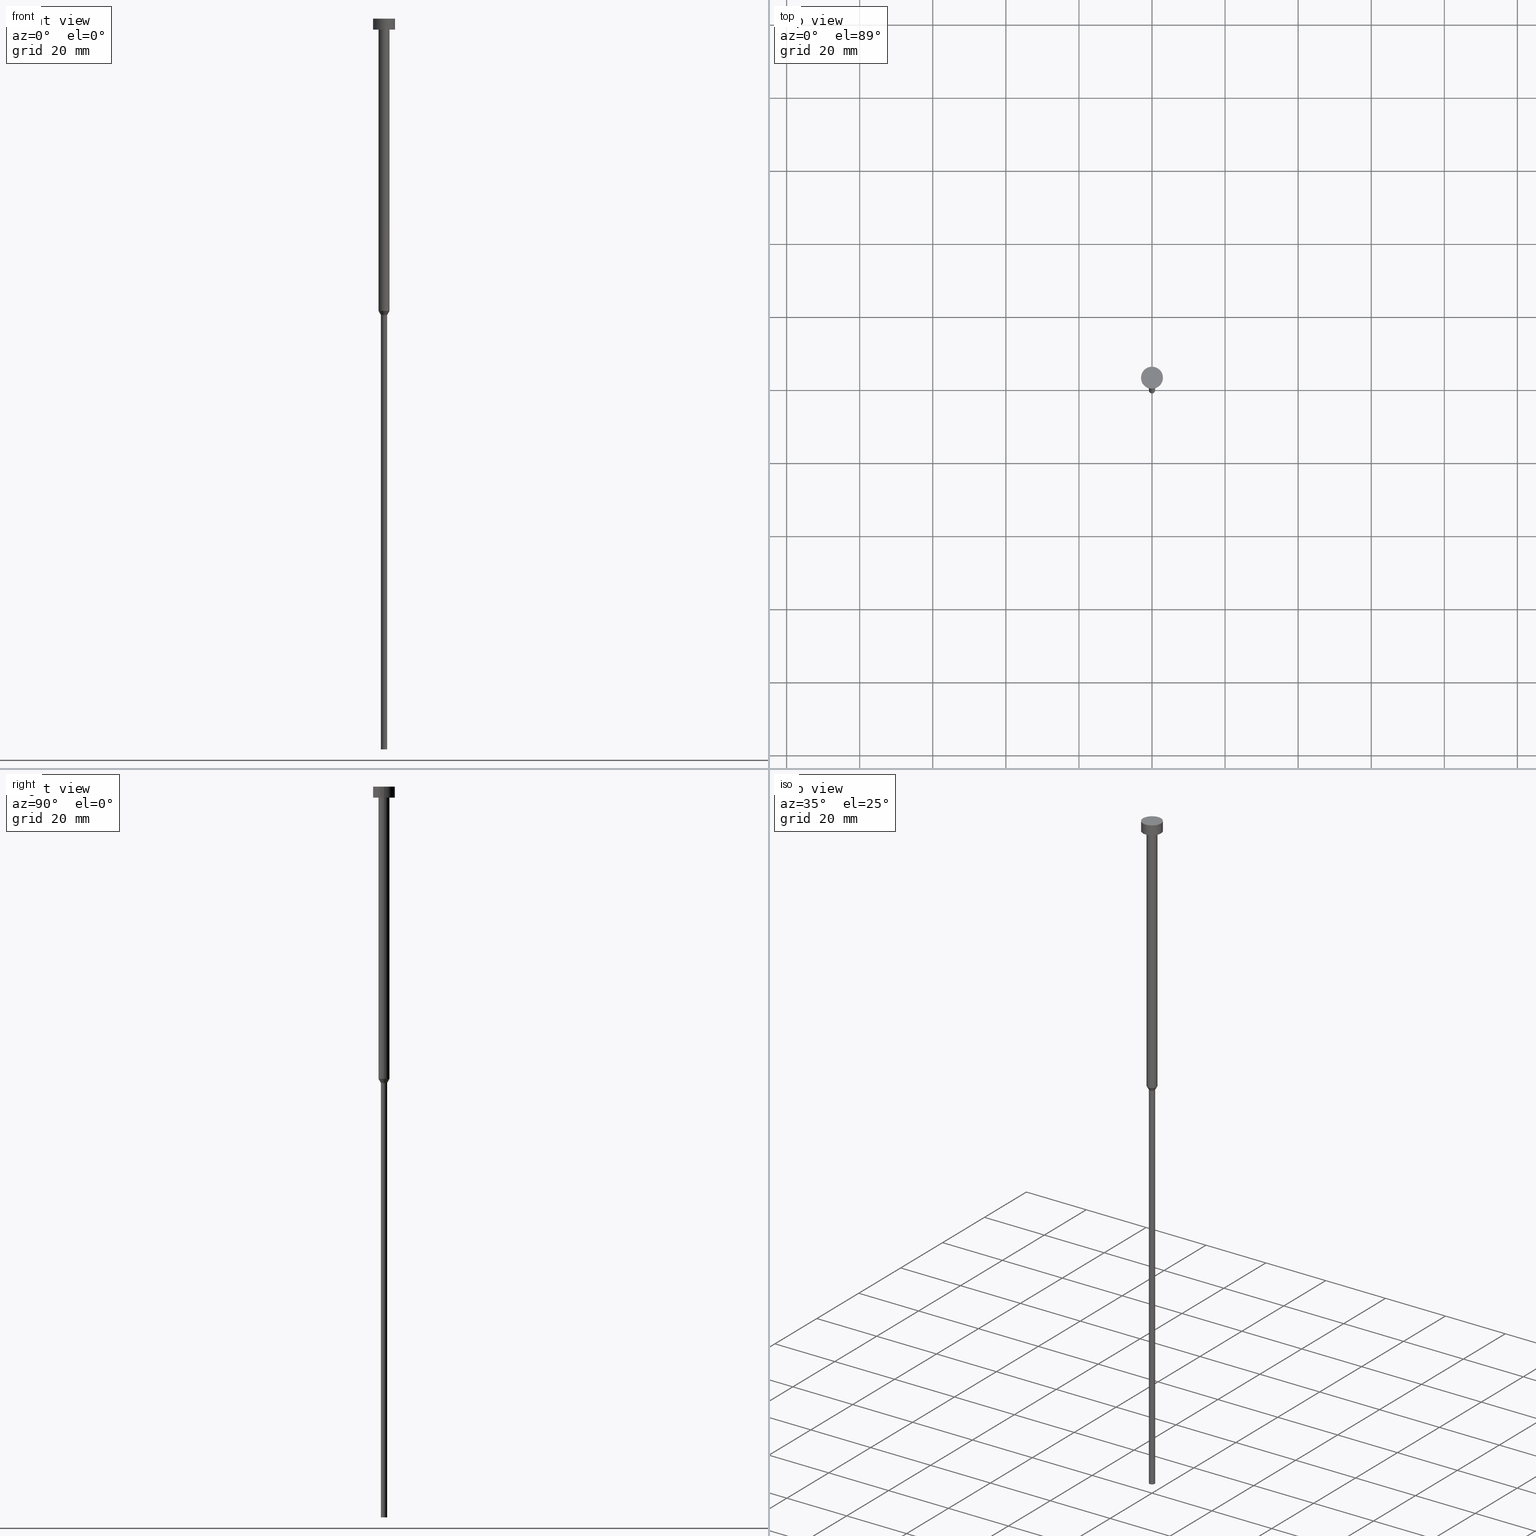
[diagram: canonical four-view strip — front | top / right | iso, engineering-drawing reading convention]
A machine part, canonical four-view strip (front | top / right | iso — engineering-drawing reading convention). The complete STEP part file that produces these views, byte-faithful:
ISO-10303-21;
HEADER;
FILE_DESCRIPTION (( 'STEP AP203' ),
    '1' );
FILE_NAME ('1be0.STEP',
    '2023-02-13T09:04:16',
    ( '' ),
    ( '' ),
    'SwSTEP 2.0',
    'SolidWorks 2019',
    '' );
FILE_SCHEMA (( 'CONFIG_CONTROL_DESIGN' ));
ENDSEC;

DATA;
#1 = AXIS2_PLACEMENT_3D ( 'NONE', #105, #158, #346 ) ;
#2 = DATE_AND_TIME ( #317, #324 ) ;
#3 = ADVANCED_FACE ( 'NONE', ( #162 ), #349, .T. ) ;
#4 = VERTEX_POINT ( 'NONE', #193 ) ;
#5 = DIRECTION ( 'NONE',  ( -0.000000000000000000, -0.000000000000000000, 1.000000000000000000 ) ) ;
#6 = VERTEX_POINT ( 'NONE', #299 ) ;
#7 = CARTESIAN_POINT ( 'NONE',  ( 0.000000000000000000, 0.000000000000000000, -80.00000000000000000 ) ) ;
#8 = ORIENTED_EDGE ( 'NONE', *, *, #166, .F. ) ;
#9 = FACE_OUTER_BOUND ( 'NONE', #244, .T. ) ;
#10 = VERTEX_POINT ( 'NONE', #164 ) ;
#11 = DIRECTION ( 'NONE',  ( -0.000000000000000000, -0.000000000000000000, 1.000000000000000000 ) ) ;
#12 = APPROVAL_PERSON_ORGANIZATION ( #95, #44, #260 ) ;
#13 = CARTESIAN_POINT ( 'NONE',  ( -0.8499999999999998668, 1.040949779275250017E-16, -200.0000000000000000 ) ) ;
#14 = APPROVAL_DATE_TIME ( #178, #44 ) ;
#15 = EDGE_LOOP ( 'NONE', ( #253, #31, #157, #182 ) ) ;
#16 = CARTESIAN_POINT ( 'NONE',  ( 0.000000000000000000, 0.000000000000000000, -200.0000000000000000 ) ) ;
#17 = PERSON ( 'NEUR�EN�', 'NEUR�EN�', 'NEUR�EN�', ('NEUR�EN�'), ('NEUR�EN�'), ('NEUR�EN�') ) ;
#18 = APPROVAL_ROLE ( '' ) ;
#19 = FACE_BOUND ( 'NONE', #208, .T. ) ;
#20 = EDGE_CURVE ( 'NONE', #277, #88, #116, .T. ) ;
#21 = PERSON_AND_ORGANIZATION_ROLE ( 'classification_officer' ) ;
#22 = VECTOR ( 'NONE', #150, 1000.000000000000114 ) ;
#23 = DIRECTION ( 'NONE',  ( 1.000000000000000000, 0.000000000000000000, 0.000000000000000000 ) ) ;
#24 = LINE ( 'NONE', #77, #249 ) ;
#25 = AXIS2_PLACEMENT_3D ( 'NONE', #79, #163, #23 ) ;
#26 = CARTESIAN_POINT ( 'NONE',  ( 0.000000000000000000, 0.000000000000000000, -3.673940397442059868E-16 ) ) ;
#27 = DIRECTION ( 'NONE',  ( 1.000000000000000000, 0.000000000000000000, 0.000000000000000000 ) ) ;
#28 = VECTOR ( 'NONE', #122, 1000.000000000000000 ) ;
#29 = CC_DESIGN_DATE_AND_TIME_ASSIGNMENT ( #295, #194, ( #347 ) ) ;
#30 = DIRECTION ( 'NONE',  ( -0.000000000000000000, -0.000000000000000000, 1.000000000000000000 ) ) ;
#31 = ORIENTED_EDGE ( 'NONE', *, *, #203, .T. ) ;
#32 = DIRECTION ( 'NONE',  ( 1.000000000000000000, 0.000000000000000000, 0.000000000000000000 ) ) ;
#33 = ORIENTED_EDGE ( 'NONE', *, *, #55, .F. ) ;
#34 = APPLICATION_CONTEXT ( 'configuration controlled 3d designs of mechanical parts and assemblies' ) ;
#35 = EDGE_CURVE ( 'NONE', #63, #48, #183, .T. ) ;
#36 = FACE_OUTER_BOUND ( 'NONE', #285, .T. ) ;
#37 = AXIS2_PLACEMENT_3D ( 'NONE', #217, #83, #273 ) ;
#38 = DIRECTION ( 'NONE',  ( -0.000000000000000000, -0.000000000000000000, 1.000000000000000000 ) ) ;
#39 = APPLICATION_CONTEXT ( 'configuration controlled 3d designs of mechanical parts and assemblies' ) ;
#40 = DIRECTION ( 'NONE',  ( 1.000000000000000000, 0.000000000000000000, 0.000000000000000000 ) ) ;
#41 = ORIENTED_EDGE ( 'NONE', *, *, #35, .T. ) ;
#42 = DATE_AND_TIME ( #338, #282 ) ;
#43 = AXIS2_PLACEMENT_3D ( 'NONE', #117, #108, #239 ) ;
#44 = APPROVAL ( #222, 'NEUR�EN�' ) ;
#45 = AXIS2_PLACEMENT_3D ( 'NONE', #275, #302, #49 ) ;
#46 = CALENDAR_DATE ( 2023, 13, 2 ) ;
#47 = AXIS2_PLACEMENT_3D ( 'NONE', #303, #219, #271 ) ;
#48 = VERTEX_POINT ( 'NONE', #13 ) ;
#49 = DIRECTION ( 'NONE',  ( 1.000000000000000000, 0.000000000000000000, 0.000000000000000000 ) ) ;
#50 = CIRCLE ( 'NONE', #186, 3.000000000000000000 ) ;
#51 = APPROVAL_PERSON_ORGANIZATION ( #126, #266, #230 ) ;
#52 = LOCAL_TIME ( 10, 4, 16.00000000000000000, #213 ) ;
#53 = DIRECTION ( 'NONE',  ( -0.000000000000000000, -0.000000000000000000, 1.000000000000000000 ) ) ;
#54 = EDGE_LOOP ( 'NONE', ( #119, #167, #339, #283 ) ) ;
#55 = EDGE_CURVE ( 'NONE', #48, #63, #189, .T. ) ;
#56 = CARTESIAN_POINT ( 'NONE',  ( 1.500000000000000000, 0.000000000000000000, -80.00000000000000000 ) ) ;
#57 = ORIENTED_EDGE ( 'NONE', *, *, #166, .T. ) ;
#58 = LINE ( 'NONE', #124, #61 ) ;
#59 = DIRECTION ( 'NONE',  ( -0.5000000000000011102, 6.123233995736779594E-17, 0.8660254037844379305 ) ) ;
#60 = DIRECTION ( 'NONE',  ( 1.000000000000000000, 0.000000000000000000, 0.000000000000000000 ) ) ;
#61 = VECTOR ( 'NONE', #340, 1000.000000000000000 ) ;
#62 = COORDINATED_UNIVERSAL_TIME_OFFSET ( 1, 0, .AHEAD. ) ;
#63 = VERTEX_POINT ( 'NONE', #337 ) ;
#64 = CARTESIAN_POINT ( 'NONE',  ( 0.000000000000000000, 0.000000000000000000, 0.000000000000000000 ) ) ;
#65 = PERSON_AND_ORGANIZATION_ROLE ( 'creator' ) ;
#66 = ORIENTED_EDGE ( 'NONE', *, *, #289, .F. ) ;
#67 = EDGE_CURVE ( 'NONE', #6, #146, #309, .T. ) ;
#68 = FACE_OUTER_BOUND ( 'NONE', #54, .T. ) ;
#69 = PRODUCT_DEFINITION_SHAPE ( 'NONE', 'NONE',  #221 ) ;
#70 = CALENDAR_DATE ( 2023, 13, 2 ) ;
#71 = CARTESIAN_POINT ( 'NONE',  ( -1.500000000000000000, 1.836970198721029934E-16, -3.000000000000000888 ) ) ;
#72 = AXIS2_PLACEMENT_3D ( 'NONE', #308, #11, #96 ) ;
#73 = CIRCLE ( 'NONE', #47, 1.500000000000000000 ) ;
#74 = APPROVAL ( #269, 'NEUR�EN�' ) ;
#75 = PERSON_AND_ORGANIZATION ( #17, #197 ) ;
#76 = FACE_OUTER_BOUND ( 'NONE', #262, .T. ) ;
#77 = CARTESIAN_POINT ( 'NONE',  ( -3.000000000000000000, 3.673940397442059868E-16, 0.000000000000000000 ) ) ;
#78 = DATE_AND_TIME ( #46, #52 ) ;
#79 = CARTESIAN_POINT ( 'NONE',  ( 0.000000000000000000, 0.000000000000000000, 0.000000000000000000 ) ) ;
#80 = ORIENTED_EDGE ( 'NONE', *, *, #20, .T. ) ;
#81 = CC_DESIGN_APPROVAL ( #74, ( #347 ) ) ;
#82 = CARTESIAN_POINT ( 'NONE',  ( 0.000000000000000000, 0.000000000000000000, 0.000000000000000000 ) ) ;
#83 = DIRECTION ( 'NONE',  ( -0.000000000000000000, -0.000000000000000000, 1.000000000000000000 ) ) ;
#84 = CARTESIAN_POINT ( 'NONE',  ( -3.000000000000000000, 3.673940397442059868E-16, -3.000000000000000888 ) ) ;
#85 = ORIENTED_EDGE ( 'NONE', *, *, #127, .T. ) ;
#86 = ADVANCED_FACE ( 'NONE', ( #229 ), #148, .T. ) ;
#87 = DIRECTION ( 'NONE',  ( -0.000000000000000000, -0.000000000000000000, 1.000000000000000000 ) ) ;
#88 = VERTEX_POINT ( 'NONE', #256 ) ;
#89 = ORIENTED_EDGE ( 'NONE', *, *, #198, .T. ) ;
#90 = ORIENTED_EDGE ( 'NONE', *, *, #289, .T. ) ;
#91 = CLOSED_SHELL ( 'NONE', ( #278, #353, #153, #188, #270, #313, #86, #176, #246, #3, #110 ) ) ;
#92 = CARTESIAN_POINT ( 'NONE',  ( 0.000000000000000000, 0.000000000000000000, -3.000000000000000888 ) ) ;
#93 = ORIENTED_EDGE ( 'NONE', *, *, #203, .F. ) ;
#94 = DIRECTION ( 'NONE',  ( -0.000000000000000000, -0.000000000000000000, 1.000000000000000000 ) ) ;
#95 = PERSON_AND_ORGANIZATION ( #17, #197 ) ;
#96 = DIRECTION ( 'NONE',  ( 1.000000000000000000, 0.000000000000000000, 0.000000000000000000 ) ) ;
#97 = APPROVAL_DATE_TIME ( #42, #266 ) ;
#98 = CIRCLE ( 'NONE', #135, 1.500000000000000000 ) ;
#99 = CC_DESIGN_PERSON_AND_ORGANIZATION_ASSIGNMENT ( #112, #132, ( #181 ) ) ;
#100 = DIRECTION ( 'NONE',  ( 1.000000000000000000, 0.000000000000000000, 0.000000000000000000 ) ) ;
#101 = ORIENTED_EDGE ( 'NONE', *, *, #234, .F. ) ;
#102 = CC_DESIGN_APPROVAL ( #266, ( #181 ) ) ;
#103 = PLANE ( 'NONE',  #140 ) ;
#104 = COORDINATED_UNIVERSAL_TIME_OFFSET ( 1, 0, .AHEAD. ) ;
#105 = CARTESIAN_POINT ( 'NONE',  ( 0.000000000000000000, 0.000000000000000000, -80.00000000000000000 ) ) ;
#106 =( GEOMETRIC_REPRESENTATION_CONTEXT ( 3 ) GLOBAL_UNCERTAINTY_ASSIGNED_CONTEXT ( ( #120 ) ) GLOBAL_UNIT_ASSIGNED_CONTEXT ( ( #247, #321, #161 ) ) REPRESENTATION_CONTEXT ( 'NONE', 'WORKASPACE' ) );
#107 = LOCAL_TIME ( 10, 4, 16.00000000000000000, #62 ) ;
#108 = DIRECTION ( 'NONE',  ( -0.000000000000000000, -0.000000000000000000, 1.000000000000000000 ) ) ;
#109 = FACE_OUTER_BOUND ( 'NONE', #223, .T. ) ;
#110 = ADVANCED_FACE ( 'NONE', ( #232 ), #174, .T. ) ;
#111 = ORIENTED_EDGE ( 'NONE', *, *, #297, .T. ) ;
#112 = PERSON_AND_ORGANIZATION ( #17, #197 ) ;
#113 = DIRECTION ( 'NONE',  ( -0.000000000000000000, -0.000000000000000000, 1.000000000000000000 ) ) ;
#114 = DIRECTION ( 'NONE',  ( -0.000000000000000000, -0.000000000000000000, 1.000000000000000000 ) ) ;
#115 = EDGE_CURVE ( 'NONE', #129, #88, #58, .T. ) ;
#116 = CIRCLE ( 'NONE', #267, 3.000000000000000000 ) ;
#117 = CARTESIAN_POINT ( 'NONE',  ( 0.000000000000000000, 0.000000000000000000, 0.000000000000000000 ) ) ;
#118 = ORIENTED_EDGE ( 'NONE', *, *, #198, .F. ) ;
#119 = ORIENTED_EDGE ( 'NONE', *, *, #348, .T. ) ;
#120 = UNCERTAINTY_MEASURE_WITH_UNIT (LENGTH_MEASURE( 1.000000000000000082E-05 ), #247, 'distance_accuracy_value', 'NONE');
#121 = CARTESIAN_POINT ( 'NONE',  ( -1.500000000000000000, 1.836970198721029934E-16, 0.000000000000000000 ) ) ;
#122 = DIRECTION ( 'NONE',  ( -0.000000000000000000, -0.000000000000000000, 1.000000000000000000 ) ) ;
#123 = AXIS2_PLACEMENT_3D ( 'NONE', #184, #293, #216 ) ;
#124 = CARTESIAN_POINT ( 'NONE',  ( 3.000000000000000000, 0.000000000000000000, 0.000000000000000000 ) ) ;
#125 = LINE ( 'NONE', #172, #28 ) ;
#126 = PERSON_AND_ORGANIZATION ( #17, #197 ) ;
#127 = EDGE_CURVE ( 'NONE', #146, #175, #125, .T. ) ;
#128 = DIRECTION ( 'NONE',  ( 1.000000000000000000, 0.000000000000000000, 0.000000000000000000 ) ) ;
#129 = VERTEX_POINT ( 'NONE', #177 ) ;
#130 = DIRECTION ( 'NONE',  ( 0.000000000000000000, 0.000000000000000000, -1.000000000000000000 ) ) ;
#131 = CC_DESIGN_SECURITY_CLASSIFICATION ( #347, ( #181 ) ) ;
#132 = PERSON_AND_ORGANIZATION_ROLE ( 'design_supplier' ) ;
#133 = MANIFOLD_SOLID_BREP ( 'Rotovat1', #91 ) ;
#134 = CIRCLE ( 'NONE', #144, 1.500000000000000000 ) ;
#135 = AXIS2_PLACEMENT_3D ( 'NONE', #187, #298, #243 ) ;
#136 = CC_DESIGN_PERSON_AND_ORGANIZATION_ASSIGNMENT ( #75, #21, ( #347 ) ) ;
#137 = SHAPE_DEFINITION_REPRESENTATION ( #69, #228 ) ;
#138 = DIRECTION ( 'NONE',  ( 1.000000000000000000, 0.000000000000000000, 0.000000000000000000 ) ) ;
#139 = CARTESIAN_POINT ( 'NONE',  ( 0.000000000000000000, 0.000000000000000000, -3.673940397442059868E-16 ) ) ;
#140 = AXIS2_PLACEMENT_3D ( 'NONE', #16, #130, #264 ) ;
#141 = ORIENTED_EDGE ( 'NONE', *, *, #20, .F. ) ;
#142 = EDGE_CURVE ( 'NONE', #6, #10, #344, .T. ) ;
#143 = DIRECTION ( 'NONE',  ( 1.000000000000000000, 0.000000000000000000, 0.000000000000000000 ) ) ;
#144 = AXIS2_PLACEMENT_3D ( 'NONE', #224, #329, #32 ) ;
#145 = LINE ( 'NONE', #250, #350 ) ;
#146 = VERTEX_POINT ( 'NONE', #332 ) ;
#147 = DIRECTION ( 'NONE',  ( 1.000000000000000000, 0.000000000000000000, 0.000000000000000000 ) ) ;
#148 = CONICAL_SURFACE ( 'NONE', #165, 1.500000000000000000, 0.5235987755983001479 ) ;
#149 = ORIENTED_EDGE ( 'NONE', *, *, #115, .T. ) ;
#150 = DIRECTION ( 'NONE',  ( 0.5000000000000011102, 0.000000000000000000, 0.8660254037844379305 ) ) ;
#151 = EDGE_LOOP ( 'NONE', ( #204, #290, #307, #258 ) ) ;
#152 = CARTESIAN_POINT ( 'NONE',  ( 0.000000000000000000, 0.000000000000000000, -1.836970198721029934E-16 ) ) ;
#153 = ADVANCED_FACE ( 'NONE', ( #333 ), #345, .T. ) ;
#154 = PERSON_AND_ORGANIZATION ( #17, #197 ) ;
#155 = ORIENTED_EDGE ( 'NONE', *, *, #215, .F. ) ;
#156 = CYLINDRICAL_SURFACE ( 'NONE', #238, 1.500000000000000000 ) ;
#157 = ORIENTED_EDGE ( 'NONE', *, *, #325, .F. ) ;
#158 = DIRECTION ( 'NONE',  ( -0.000000000000000000, -0.000000000000000000, 1.000000000000000000 ) ) ;
#159 = CIRCLE ( 'NONE', #1, 1.500000000000000000 ) ;
#160 = CC_DESIGN_PERSON_AND_ORGANIZATION_ASSIGNMENT ( #235, #65, ( #221 ) ) ;
#161 =( NAMED_UNIT ( * ) SI_UNIT ( $, .STERADIAN. ) SOLID_ANGLE_UNIT ( ) );
#162 = FACE_OUTER_BOUND ( 'NONE', #355, .T. ) ;
#163 = DIRECTION ( 'NONE',  ( 0.000000000000000000, 0.000000000000000000, 1.000000000000000000 ) ) ;
#164 = CARTESIAN_POINT ( 'NONE',  ( -0.8499999999999998668, 1.040949779275250017E-16, -81.12583302491977122 ) ) ;
#165 = AXIS2_PLACEMENT_3D ( 'NONE', #284, #312, #40 ) ;
#166 = EDGE_CURVE ( 'NONE', #10, #6, #211, .T. ) ;
#167 = ORIENTED_EDGE ( 'NONE', *, *, #330, .T. ) ;
#168 = CARTESIAN_POINT ( 'NONE',  ( 0.000000000000000000, 0.000000000000000000, -3.000000000000000888 ) ) ;
#169 = APPROVAL_PERSON_ORGANIZATION ( #294, #74, #18 ) ;
#170 = CARTESIAN_POINT ( 'NONE',  ( 1.500000000000000000, 0.000000000000000000, -3.000000000000000888 ) ) ;
#171 = CC_DESIGN_DATE_AND_TIME_ASSIGNMENT ( #2, #205, ( #221 ) ) ;
#172 = CARTESIAN_POINT ( 'NONE',  ( 1.500000000000000000, 0.000000000000000000, 0.000000000000000000 ) ) ;
#173 = EDGE_LOOP ( 'NONE', ( #155, #57, #220, #66 ) ) ;
#174 = PLANE ( 'NONE',  #272 ) ;
#175 = VERTEX_POINT ( 'NONE', #170 ) ;
#176 = ADVANCED_FACE ( 'NONE', ( #9 ), #156, .T. ) ;
#177 = CARTESIAN_POINT ( 'NONE',  ( 3.000000000000000000, 0.000000000000000000, -3.000000000000000888 ) ) ;
#178 = DATE_AND_TIME ( #70, #107 ) ;
#179 = LINE ( 'NONE', #288, #316 ) ;
#180 = APPROVAL_STATUS ( 'not_yet_approved' ) ;
#181 = PRODUCT_DEFINITION_FORMATION_WITH_SPECIFIED_SOURCE ( 'LIBOVOLN�', '', #210, .NOT_KNOWN. ) ;
#182 = ORIENTED_EDGE ( 'NONE', *, *, #127, .F. ) ;
#183 = CIRCLE ( 'NONE', #45, 0.8499999999999998668 ) ;
#184 = CARTESIAN_POINT ( 'NONE',  ( 0.000000000000000000, 0.000000000000000000, 0.000000000000000000 ) ) ;
#185 = COORDINATED_UNIVERSAL_TIME_OFFSET ( 1, 0, .AHEAD. ) ;
#186 = AXIS2_PLACEMENT_3D ( 'NONE', #168, #53, #143 ) ;
#187 = CARTESIAN_POINT ( 'NONE',  ( 0.000000000000000000, 0.000000000000000000, -80.00000000000000000 ) ) ;
#188 = ADVANCED_FACE ( 'NONE', ( #36 ), #206, .T. ) ;
#189 = CIRCLE ( 'NONE', #245, 0.8499999999999998668 ) ;
#190 = PERSON_AND_ORGANIZATION ( #17, #197 ) ;
#191 = FACE_OUTER_BOUND ( 'NONE', #15, .T. ) ;
#192 = AXIS2_PLACEMENT_3D ( 'NONE', #82, #87, #27 ) ;
#193 = CARTESIAN_POINT ( 'NONE',  ( -1.500000000000000000, 1.836970198721029934E-16, -80.00000000000000000 ) ) ;
#194 = DATE_TIME_ROLE ( 'classification_date' ) ;
#195 = DIRECTION ( 'NONE',  ( 1.000000000000000000, 0.000000000000000000, 0.000000000000000000 ) ) ;
#196 = ORIENTED_EDGE ( 'NONE', *, *, #297, .F. ) ;
#197 = ORGANIZATION ( 'NEUR�EN�', 'NEUR�EN�', '' ) ;
#198 = EDGE_CURVE ( 'NONE', #63, #6, #145, .T. ) ;
#199 = DIRECTION ( 'NONE',  ( -0.000000000000000000, -0.000000000000000000, 1.000000000000000000 ) ) ;
#200 = AXIS2_PLACEMENT_3D ( 'NONE', #254, #314, #286 ) ;
#201 = ORIENTED_EDGE ( 'NONE', *, *, #237, .T. ) ;
#202 = DIRECTION ( 'NONE',  ( 1.000000000000000000, 0.000000000000000000, 0.000000000000000000 ) ) ;
#203 = EDGE_CURVE ( 'NONE', #4, #240, #281, .T. ) ;
#204 = ORIENTED_EDGE ( 'NONE', *, *, #142, .T. ) ;
#205 = DATE_TIME_ROLE ( 'creation_date' ) ;
#206 = CYLINDRICAL_SURFACE ( 'NONE', #200, 0.8499999999999998668 ) ;
#207 = CIRCLE ( 'NONE', #292, 3.000000000000000000 ) ;
#208 = EDGE_LOOP ( 'NONE', ( #336, #279 ) ) ;
#209 = DIRECTION ( 'NONE',  ( 0.000000000000000000, 0.000000000000000000, -1.000000000000000000 ) ) ;
#210 = PRODUCT ( '1be0', '1be0', '', ( #351 ) ) ;
#211 = CIRCLE ( 'NONE', #72, 0.8499999999999998668 ) ;
#212 = DIRECTION ( 'NONE',  ( -1.000000000000000000, 0.000000000000000000, -0.000000000000000000 ) ) ;
#213 = COORDINATED_UNIVERSAL_TIME_OFFSET ( 1, 0, .AHEAD. ) ;
#214 = PLANE ( 'NONE',  #296 ) ;
#215 = EDGE_CURVE ( 'NONE', #10, #4, #179, .T. ) ;
#216 = DIRECTION ( 'NONE',  ( 1.000000000000000000, 0.000000000000000000, 0.000000000000000000 ) ) ;
#217 = CARTESIAN_POINT ( 'NONE',  ( 0.000000000000000000, 0.000000000000000000, 0.000000000000000000 ) ) ;
#218 = EDGE_LOOP ( 'NONE', ( #352, #80 ) ) ;
#219 = DIRECTION ( 'NONE',  ( -0.000000000000000000, -0.000000000000000000, 1.000000000000000000 ) ) ;
#220 = ORIENTED_EDGE ( 'NONE', *, *, #67, .T. ) ;
#221 = PRODUCT_DEFINITION ( 'NEZN�M�', '', #181, #315 ) ;
#222 = APPROVAL_STATUS ( 'not_yet_approved' ) ;
#223 = EDGE_LOOP ( 'NONE', ( #196, #304, #89, #8 ) ) ;
#224 = CARTESIAN_POINT ( 'NONE',  ( 0.000000000000000000, 0.000000000000000000, -3.000000000000000888 ) ) ;
#225 = CARTESIAN_POINT ( 'NONE',  ( 0.000000000000000000, 0.000000000000000000, -81.12583302491977122 ) ) ;
#226 = CC_DESIGN_PERSON_AND_ORGANIZATION_ASSIGNMENT ( #154, #341, ( #210 ) ) ;
#227 = DIRECTION ( 'NONE',  ( 0.000000000000000000, -0.000000000000000000, 1.000000000000000000 ) ) ;
#228 = ADVANCED_BREP_SHAPE_REPRESENTATION ( '1be0', ( #133, #25 ), #106 ) ;
#229 = FACE_OUTER_BOUND ( 'NONE', #173, .T. ) ;
#230 = APPROVAL_ROLE ( '' ) ;
#231 = ORIENTED_EDGE ( 'NONE', *, *, #330, .F. ) ;
#232 = FACE_OUTER_BOUND ( 'NONE', #218, .T. ) ;
#233 = EDGE_LOOP ( 'NONE', ( #251, #248 ) ) ;
#234 = EDGE_CURVE ( 'NONE', #240, #175, #134, .T. ) ;
#235 = PERSON_AND_ORGANIZATION ( #17, #197 ) ;
#236 = FACE_OUTER_BOUND ( 'NONE', #233, .T. ) ;
#237 = EDGE_CURVE ( 'NONE', #342, #129, #327, .T. ) ;
#238 = AXIS2_PLACEMENT_3D ( 'NONE', #64, #5, #202 ) ;
#239 = DIRECTION ( 'NONE',  ( 1.000000000000000000, 0.000000000000000000, 0.000000000000000000 ) ) ;
#240 = VERTEX_POINT ( 'NONE', #71 ) ;
#241 = APPLICATION_PROTOCOL_DEFINITION ( 'international standard', 'config_control_design', 1994, #34 ) ;
#242 = AXIS2_PLACEMENT_3D ( 'NONE', #92, #199, #147 ) ;
#243 = DIRECTION ( 'NONE',  ( 1.000000000000000000, 0.000000000000000000, 0.000000000000000000 ) ) ;
#244 = EDGE_LOOP ( 'NONE', ( #93, #90, #85, #101 ) ) ;
#245 = AXIS2_PLACEMENT_3D ( 'NONE', #280, #252, #128 ) ;
#246 = ADVANCED_FACE ( 'NONE', ( #19, #236 ), #214, .T. ) ;
#247 =( LENGTH_UNIT ( ) NAMED_UNIT ( * ) SI_UNIT ( .MILLI., .METRE. ) );
#248 = ORIENTED_EDGE ( 'NONE', *, *, #237, .F. ) ;
#249 = VECTOR ( 'NONE', #114, 1000.000000000000000 ) ;
#250 = CARTESIAN_POINT ( 'NONE',  ( 0.8499999999999998668, 0.000000000000000000, 0.000000000000000000 ) ) ;
#251 = ORIENTED_EDGE ( 'NONE', *, *, #348, .F. ) ;
#252 = DIRECTION ( 'NONE',  ( -0.000000000000000000, -0.000000000000000000, 1.000000000000000000 ) ) ;
#253 = ORIENTED_EDGE ( 'NONE', *, *, #261, .T. ) ;
#254 = CARTESIAN_POINT ( 'NONE',  ( 0.000000000000000000, 0.000000000000000000, 0.000000000000000000 ) ) ;
#255 = VECTOR ( 'NONE', #38, 1000.000000000000000 ) ;
#256 = CARTESIAN_POINT ( 'NONE',  ( 3.000000000000000000, 0.000000000000000000, -3.673940397442059868E-16 ) ) ;
#257 = LOCAL_TIME ( 10, 4, 16.00000000000000000, #104 ) ;
#258 = ORIENTED_EDGE ( 'NONE', *, *, #67, .F. ) ;
#259 = DIRECTION ( 'NONE',  ( 1.000000000000000000, 0.000000000000000000, 0.000000000000000000 ) ) ;
#260 = APPROVAL_ROLE ( '' ) ;
#261 = EDGE_CURVE ( 'NONE', #146, #4, #159, .T. ) ;
#262 = EDGE_LOOP ( 'NONE', ( #331, #33 ) ) ;
#263 = CARTESIAN_POINT ( 'NONE',  ( 0.000000000000000000, -3.000000000000000000, -3.000000000000000888 ) ) ;
#264 = DIRECTION ( 'NONE',  ( -1.000000000000000000, 0.000000000000000000, -0.000000000000000000 ) ) ;
#265 = SECURITY_CLASSIFICATION_LEVEL ( 'unclassified' ) ;
#266 = APPROVAL ( #180, 'NEUR�EN�' ) ;
#267 = AXIS2_PLACEMENT_3D ( 'NONE', #139, #113, #195 ) ;
#268 = PERSON_AND_ORGANIZATION_ROLE ( 'creator' ) ;
#269 = APPROVAL_STATUS ( 'not_yet_approved' ) ;
#270 = ADVANCED_FACE ( 'NONE', ( #76 ), #103, .T. ) ;
#271 = DIRECTION ( 'NONE',  ( 1.000000000000000000, 0.000000000000000000, 0.000000000000000000 ) ) ;
#272 = AXIS2_PLACEMENT_3D ( 'NONE', #152, #227, #259 ) ;
#273 = DIRECTION ( 'NONE',  ( 1.000000000000000000, 0.000000000000000000, 0.000000000000000000 ) ) ;
#274 = DIRECTION ( 'NONE',  ( -0.000000000000000000, -0.000000000000000000, 1.000000000000000000 ) ) ;
#275 = CARTESIAN_POINT ( 'NONE',  ( 0.000000000000000000, 0.000000000000000000, -200.0000000000000000 ) ) ;
#276 = CARTESIAN_POINT ( 'NONE',  ( -0.8499999999999998668, 1.040949779275250017E-16, 0.000000000000000000 ) ) ;
#277 = VERTEX_POINT ( 'NONE', #318 ) ;
#278 = ADVANCED_FACE ( 'NONE', ( #68 ), #320, .T. ) ;
#279 = ORIENTED_EDGE ( 'NONE', *, *, #234, .T. ) ;
#280 = CARTESIAN_POINT ( 'NONE',  ( 0.000000000000000000, 0.000000000000000000, -200.0000000000000000 ) ) ;
#281 = LINE ( 'NONE', #121, #255 ) ;
#282 = LOCAL_TIME ( 10, 4, 16.00000000000000000, #185 ) ;
#283 = ORIENTED_EDGE ( 'NONE', *, *, #115, .F. ) ;
#284 = CARTESIAN_POINT ( 'NONE',  ( 0.000000000000000000, 0.000000000000000000, -80.00000000000000000 ) ) ;
#285 = EDGE_LOOP ( 'NONE', ( #41, #111, #310, #118 ) ) ;
#286 = DIRECTION ( 'NONE',  ( 1.000000000000000000, 0.000000000000000000, 0.000000000000000000 ) ) ;
#287 = VECTOR ( 'NONE', #274, 1000.000000000000000 ) ;
#288 = CARTESIAN_POINT ( 'NONE',  ( -1.500000000000000000, 1.836970198721029934E-16, -80.00000000000000000 ) ) ;
#289 = EDGE_CURVE ( 'NONE', #4, #146, #98, .T. ) ;
#290 = ORIENTED_EDGE ( 'NONE', *, *, #215, .T. ) ;
#291 = EDGE_CURVE ( 'NONE', #88, #277, #207, .T. ) ;
#292 = AXIS2_PLACEMENT_3D ( 'NONE', #26, #305, #138 ) ;
#293 = DIRECTION ( 'NONE',  ( -0.000000000000000000, -0.000000000000000000, 1.000000000000000000 ) ) ;
#294 = PERSON_AND_ORGANIZATION ( #17, #197 ) ;
#295 = DATE_AND_TIME ( #319, #257 ) ;
#296 = AXIS2_PLACEMENT_3D ( 'NONE', #263, #209, #212 ) ;
#297 = EDGE_CURVE ( 'NONE', #48, #10, #301, .T. ) ;
#298 = DIRECTION ( 'NONE',  ( -0.000000000000000000, -0.000000000000000000, 1.000000000000000000 ) ) ;
#299 = CARTESIAN_POINT ( 'NONE',  ( 0.8499999999999998668, 0.000000000000000000, -81.12583302491977122 ) ) ;
#300 = APPROVAL_DATE_TIME ( #78, #74 ) ;
#301 = LINE ( 'NONE', #276, #287 ) ;
#302 = DIRECTION ( 'NONE',  ( -0.000000000000000000, -0.000000000000000000, 1.000000000000000000 ) ) ;
#303 = CARTESIAN_POINT ( 'NONE',  ( 0.000000000000000000, 0.000000000000000000, -3.000000000000000888 ) ) ;
#304 = ORIENTED_EDGE ( 'NONE', *, *, #55, .T. ) ;
#305 = DIRECTION ( 'NONE',  ( -0.000000000000000000, -0.000000000000000000, 1.000000000000000000 ) ) ;
#306 = CC_DESIGN_APPROVAL ( #44, ( #221 ) ) ;
#307 = ORIENTED_EDGE ( 'NONE', *, *, #261, .F. ) ;
#308 = CARTESIAN_POINT ( 'NONE',  ( 0.000000000000000000, 0.000000000000000000, -81.12583302491977122 ) ) ;
#309 = LINE ( 'NONE', #56, #22 ) ;
#310 = ORIENTED_EDGE ( 'NONE', *, *, #142, .F. ) ;
#311 = DIRECTION ( 'NONE',  ( -0.000000000000000000, -0.000000000000000000, 1.000000000000000000 ) ) ;
#312 = DIRECTION ( 'NONE',  ( -0.000000000000000000, -0.000000000000000000, 1.000000000000000000 ) ) ;
#313 = ADVANCED_FACE ( 'NONE', ( #109 ), #354, .T. ) ;
#314 = DIRECTION ( 'NONE',  ( -0.000000000000000000, -0.000000000000000000, 1.000000000000000000 ) ) ;
#315 = DESIGN_CONTEXT ( 'detailed design', #39, 'design' ) ;
#316 = VECTOR ( 'NONE', #59, 1000.000000000000114 ) ;
#317 = CALENDAR_DATE ( 2023, 13, 2 ) ;
#318 = CARTESIAN_POINT ( 'NONE',  ( -3.000000000000000000, 3.673940397442059868E-16, -3.673940397442059868E-16 ) ) ;
#319 = CALENDAR_DATE ( 2023, 13, 2 ) ;
#320 = CYLINDRICAL_SURFACE ( 'NONE', #123, 3.000000000000000000 ) ;
#321 =( NAMED_UNIT ( * ) PLANE_ANGLE_UNIT ( ) SI_UNIT ( $, .RADIAN. ) );
#322 = PRODUCT_RELATED_PRODUCT_CATEGORY ( 'detail', '', ( #210 ) ) ;
#323 = AXIS2_PLACEMENT_3D ( 'NONE', #7, #94, #60 ) ;
#324 = LOCAL_TIME ( 10, 4, 16.00000000000000000, #343 ) ;
#325 = EDGE_CURVE ( 'NONE', #175, #240, #73, .T. ) ;
#326 = AXIS2_PLACEMENT_3D ( 'NONE', #225, #30, #100 ) ;
#327 = CIRCLE ( 'NONE', #242, 3.000000000000000000 ) ;
#328 = CYLINDRICAL_SURFACE ( 'NONE', #192, 1.500000000000000000 ) ;
#329 = DIRECTION ( 'NONE',  ( -0.000000000000000000, -0.000000000000000000, 1.000000000000000000 ) ) ;
#330 = EDGE_CURVE ( 'NONE', #342, #277, #24, .T. ) ;
#331 = ORIENTED_EDGE ( 'NONE', *, *, #35, .F. ) ;
#332 = CARTESIAN_POINT ( 'NONE',  ( 1.500000000000000000, 0.000000000000000000, -80.00000000000000000 ) ) ;
#333 = FACE_OUTER_BOUND ( 'NONE', #151, .T. ) ;
#334 = APPLICATION_PROTOCOL_DEFINITION ( 'international standard', 'config_control_design', 1994, #39 ) ;
#335 = CC_DESIGN_PERSON_AND_ORGANIZATION_ASSIGNMENT ( #190, #268, ( #181 ) ) ;
#336 = ORIENTED_EDGE ( 'NONE', *, *, #325, .T. ) ;
#337 = CARTESIAN_POINT ( 'NONE',  ( 0.8499999999999998668, 0.000000000000000000, -200.0000000000000000 ) ) ;
#338 = CALENDAR_DATE ( 2023, 13, 2 ) ;
#339 = ORIENTED_EDGE ( 'NONE', *, *, #291, .F. ) ;
#340 = DIRECTION ( 'NONE',  ( -0.000000000000000000, -0.000000000000000000, 1.000000000000000000 ) ) ;
#341 = PERSON_AND_ORGANIZATION_ROLE ( 'design_owner' ) ;
#342 = VERTEX_POINT ( 'NONE', #84 ) ;
#343 = COORDINATED_UNIVERSAL_TIME_OFFSET ( 1, 0, .AHEAD. ) ;
#344 = CIRCLE ( 'NONE', #326, 0.8499999999999998668 ) ;
#345 = CONICAL_SURFACE ( 'NONE', #323, 1.500000000000000000, 0.5235987755983001479 ) ;
#346 = DIRECTION ( 'NONE',  ( 1.000000000000000000, 0.000000000000000000, 0.000000000000000000 ) ) ;
#347 = SECURITY_CLASSIFICATION ( '', '', #265 ) ;
#348 = EDGE_CURVE ( 'NONE', #129, #342, #50, .T. ) ;
#349 = CYLINDRICAL_SURFACE ( 'NONE', #37, 3.000000000000000000 ) ;
#350 = VECTOR ( 'NONE', #311, 1000.000000000000000 ) ;
#351 = MECHANICAL_CONTEXT ( 'NONE', #34, 'mechanical' ) ;
#352 = ORIENTED_EDGE ( 'NONE', *, *, #291, .T. ) ;
#353 = ADVANCED_FACE ( 'NONE', ( #191 ), #328, .T. ) ;
#354 = CYLINDRICAL_SURFACE ( 'NONE', #43, 0.8499999999999998668 ) ;
#355 = EDGE_LOOP ( 'NONE', ( #231, #201, #149, #141 ) ) ;
ENDSEC;
END-ISO-10303-21;
